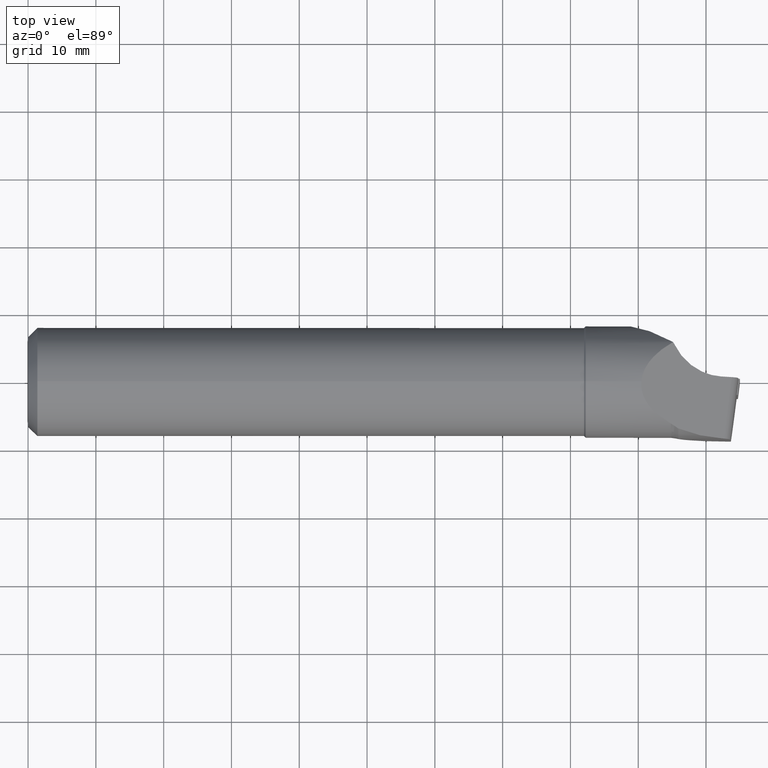
[diagram: clean part render]
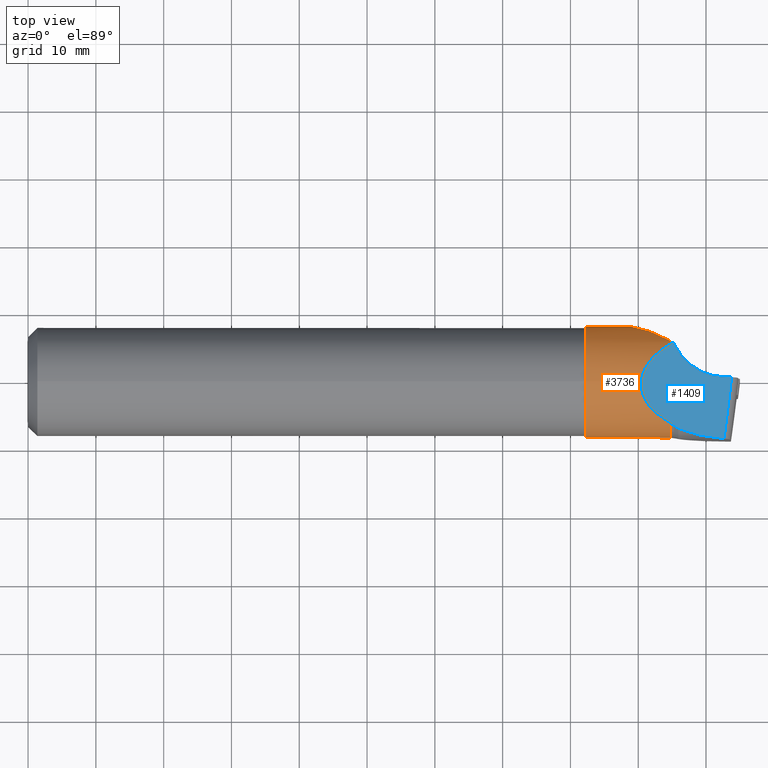
[diagram: same view with the hole feature highlighted: cylindrical wall and planar end face, labeled with their STEP entity ids]
A machine part, top view. The highlighted faces form one hole feature of diameter 16.5 mm: the cylindrical wall (entity #3736, orange) and its adjacent planar end face (entity #1409, blue) — they share a circular edge in the B-rep.
Wall:
#39 = LINE ( 'NONE', #2647, #718 ) ;
#103 = CARTESIAN_POINT ( 'NONE',  ( 82.25000000000004300, 1.132828639921479300E-014, 8.250000000000016000 ) ) ;
#108 = EDGE_CURVE ( 'NONE', #2650, #2650, #2310, .T. ) ;
#117 = CARTESIAN_POINT ( 'NONE',  ( 94.81279082509134100, 5.600531583967415000, 6.057767408623729600 ) ) ;
#158 = CARTESIAN_POINT ( 'NONE',  ( 94.45114047065145300, -6.498213384498396500, -5.083303957564925000 ) ) ;
#160 = CARTESIAN_POINT ( 'NONE',  ( 85.05463793922514500, 7.792571398033995700, -2.720492985204813400 ) ) ;
#170 = CARTESIAN_POINT ( 'NONE',  ( 93.83172036081710100, -5.764164695537372700, -5.911072384706151300 ) ) ;
#171 = CARTESIAN_POINT ( 'NONE',  ( 85.47870053942779100, 1.372822541037112000, -8.136110431622466200 ) ) ;
#188 = CARTESIAN_POINT ( 'NONE',  ( 83.82874726931567000, 7.150984415827331900, -4.123198518134644000 ) ) ;
#196 = CARTESIAN_POINT ( 'NONE',  ( 82.47773327423274700, 5.112641907717137900, -6.476896705371637500 ) ) ;
#238 = CARTESIAN_POINT ( 'NONE',  ( 88.61028506717654800, 1.970548363892312500, 9.413762167412437900 ) ) ;
#270 = CARTESIAN_POINT ( 'NONE',  ( 89.22407377641575000, 0.2063974402334956800, -8.248546554177606200 ) ) ;
#352 = DIRECTION ( 'NONE',  ( 0.0000000000000000000, 1.951563910473924900E-017, 1.000000000000000000 ) ) ;
#431 = CARTESIAN_POINT ( 'NONE',  ( 92.97495974480986500, -0.7354221151415072400, -8.244986181369634800 ) ) ;
#461 = CARTESIAN_POINT ( 'NONE',  ( 84.61989537200767600, 1.844104437066210700, -8.042962511283652900 ) ) ;
#471 = CARTESIAN_POINT ( 'NONE',  ( 82.68438157144717600, 5.837127699295306700, -5.832196515561955500 ) ) ;
#510 = CARTESIAN_POINT ( 'NONE',  ( 91.17347121959994600, -0.02569698064891597100, -8.250226498002538400 ) ) ;
#556 = CARTESIAN_POINT ( 'NONE',  ( 94.81279082509136900, 1.441988889405720900E-014, 7.806255641895631900E-015 ) ) ;
#581 = EDGE_LOOP ( 'NONE', ( #3699, #1545, #3290, #1607, #3249, #2121 ) ) ;
#649 = AXIS2_PLACEMENT_3D ( 'NONE', #2401, #2117, #2705 ) ;
#718 = VECTOR ( 'NONE', #1781, 1000.000000000000000 ) ;
#740 = CARTESIAN_POINT ( 'NONE',  ( 92.99421829504814200, -0.05857669549425643900, -8.249792044090764200 ) ) ;
#752 = CARTESIAN_POINT ( 'NONE',  ( 83.46457210586652300, 6.862117985993690700, -4.587884139955465700 ) ) ;
#760 = CARTESIAN_POINT ( 'NONE',  ( 94.19687023101184300, -6.282604741102617600, -5.349183036921767900 ) ) ;
#774 = CARTESIAN_POINT ( 'NONE',  ( 82.46625092989408800, 4.980605815046057900, -6.579033865242605500 ) ) ;
#797 = CARTESIAN_POINT ( 'NONE',  ( 87.06646073698078700, 8.237948317455497700, -0.6351272398047614900 ) ) ;
#842 = DIRECTION ( 'NONE',  ( -1.000000000000000000, -8.847089727481710000E-017, -5.551115123125779000E-017 ) ) ;
#880 = CARTESIAN_POINT ( 'NONE',  ( 88.61028506717654800, -2.965988874112237100, 9.149037599533990300 ) ) ;
#900 = CIRCLE ( 'NONE', #921, 8.250000000000003600 ) ;
#921 = AXIS2_PLACEMENT_3D ( 'NONE', #959, #3319, #352 ) ;
#959 = CARTESIAN_POINT ( 'NONE',  ( 94.81279082509136900, 1.441988889405720900E-014, 7.806255641895631900E-015 ) ) ;
#999 = CARTESIAN_POINT ( 'NONE',  ( 94.64723944378155800, -6.596996995718136200, -4.954262788221908100 ) ) ;
#1055 = CARTESIAN_POINT ( 'NONE',  ( 94.51019602967657800, -6.535384581973137800, -5.035259427475621900 ) ) ;
#1063 = CARTESIAN_POINT ( 'NONE',  ( 91.32394160923593100, 7.579248507518507000, 3.286439135073551100 ) ) ;
#1070 = CARTESIAN_POINT ( 'NONE',  ( 94.81279082509134100, 5.966060737431767800, 5.698124189351756500 ) ) ;
#1073 = CARTESIAN_POINT ( 'NONE',  ( 83.82249756408157300, 2.417296308680590300, -7.890574200201366600 ) ) ;
#1133 = CARTESIAN_POINT ( 'NONE',  ( 94.81279082509135500, -6.216252376388659700, 5.424085765642189500 ) ) ;
#1169 = CARTESIAN_POINT ( 'NONE',  ( 94.81279082509135500, -6.216252376388659700, 5.424085765642189500 ) ) ;
#1175 = VERTEX_POINT ( 'NONE', #2509 ) ;
#1296 = CARTESIAN_POINT ( 'NONE',  ( 93.19512659255785500, -3.626187602783514500, -7.417727172103911700 ) ) ;
#1322 = CARTESIAN_POINT ( 'NONE',  ( 93.95541394087437900, -5.985500335067067500, -5.685579277486086300 ) ) ;
#1323 = CARTESIAN_POINT ( 'NONE',  ( 89.87673581892181600, 7.998254840959744700, 2.034740607515970200 ) ) ;
#1346 = CARTESIAN_POINT ( 'NONE',  ( 90.11859365492830400, 7.940158404167386100, 2.250580439175839500 ) ) ;
#1353 = CARTESIAN_POINT ( 'NONE',  ( 82.46770247416755200, 4.711604762658517100, -6.774282356484208700 ) ) ;
#1369 = CARTESIAN_POINT ( 'NONE',  ( 83.29483741608788700, 6.703565843215958600, -4.817382303978957800 ) ) ;
#1399 = DIRECTION ( 'NONE',  ( 0.0000000000000000000, 1.951563910473924900E-017, 1.000000000000000000 ) ) ;
#1449 = CYLINDRICAL_SURFACE ( 'NONE', #649, 8.250000000000003600 ) ;
#1493 = EDGE_CURVE ( 'NONE', #3204, #1175, #1740, .T. ) ;
#1511 = DIRECTION ( 'NONE',  ( -1.000000000000000000, -8.847089727481710000E-017, -5.551115123125779000E-017 ) ) ;
#1545 = ORIENTED_EDGE ( 'NONE', *, *, #1493, .T. ) ;
#1597 = CARTESIAN_POINT ( 'NONE',  ( 93.30497696217656800, -4.208407270898464800, -7.103606209003881800 ) ) ;
#1607 = ORIENTED_EDGE ( 'NONE', *, *, #2817, .T. ) ;
#1624 = CARTESIAN_POINT ( 'NONE',  ( 93.04738777316529800, -2.378670822269626700, -7.906824188195347600 ) ) ;
#1625 = CARTESIAN_POINT ( 'NONE',  ( 85.18650896685466000, 1.519601010731012300, -8.110535118036720400 ) ) ;
#1641 = CARTESIAN_POINT ( 'NONE',  ( 86.61145308633419400, 8.190945871813829300, -1.091862980500433600 ) ) ;
#1652 = CARTESIAN_POINT ( 'NONE',  ( 92.98542042703505200, -1.399997660744666700, -8.158203297595704800 ) ) ;
#1653 = CARTESIAN_POINT ( 'NONE',  ( 84.02298037049227700, 7.280794784554201400, -3.888485692124142600 ) ) ;
#1667 = CARTESIAN_POINT ( 'NONE',  ( 84.34418248513902900, 2.022617653384543200, -8.000843735573242900 ) ) ;
#1678 = CARTESIAN_POINT ( 'NONE',  ( 83.14660840993093400, 3.096183806076538300, -7.651002940816924000 ) ) ;
#1708 = AXIS2_PLACEMENT_3D ( 'NONE', #2392, #1511, #3566 ) ;
#1740 = B_SPLINE_CURVE_WITH_KNOTS ( 'NONE', 3,
 ( #740, #431, #1652, #1624, #3097, #2788, #1296, #1597, #3089, #3076, #2806, #170, #1322, #760, #2819, #158, #1055, #999, #3688, #1890 ),
 .UNSPECIFIED., .F., .F.,
 ( 4, 2, 2, 2, 2, 2, 2, 2, 2, 4 ),
 ( 0.0001985328325759686300, 0.002209276724673574200, 0.003214648670722376100, 0.004220020616771178100, 0.005225392562819979600, 0.006230764508868781900, 0.007236136454917583400, 0.007738822427941985000, 0.007990165414454186700, 0.008241508400966386600 ),
 .UNSPECIFIED. ) ;
#1781 = DIRECTION ( 'NONE',  ( 1.000000000000000000, 8.847089727481710000E-017, 5.551115123125779000E-017 ) ) ;
#1890 = CARTESIAN_POINT ( 'NONE',  ( 94.81279082509136900, -6.625430929207062100, -4.915909376941980800 ) ) ;
#1913 = CARTESIAN_POINT ( 'NONE',  ( 84.42314837974215900, 7.511504183772420800, -3.421636826113396300 ) ) ;
#1931 = CARTESIAN_POINT ( 'NONE',  ( 82.95436295751781600, 3.351818408483764300, -7.544220781660688300 ) ) ;
#1944 = CARTESIAN_POINT ( 'NONE',  ( 85.93795317957868500, 8.058056465293855600, -1.784808326663873500 ) ) ;
#1957 = CARTESIAN_POINT ( 'NONE',  ( 82.85211707265064300, 6.159891513962239000, -5.496775457690646700 ) ) ;
#1968 = CARTESIAN_POINT ( 'NONE',  ( 82.52119559377807400, 5.365553485440627500, -6.268981895290131900 ) ) ;
#1984 = CARTESIAN_POINT ( 'NONE',  ( 91.83332924902505600, -0.05857669549424344300, -8.249792044090847700 ) ) ;
#1992 = CARTESIAN_POINT ( 'NONE',  ( 87.94775995434319800, 0.4790732452577076700, -8.237208810358529500 ) ) ;
#2002 = CARTESIAN_POINT ( 'NONE',  ( 87.31681149530511700, 0.6518591974243338500, -8.227190871824873900 ) ) ;
#2113 = VERTEX_POINT ( 'NONE', #1169 ) ;
#2117 = DIRECTION ( 'NONE',  ( -1.000000000000000000, -8.847089727481710000E-017, -5.551115123125779000E-017 ) ) ;
#2121 = ORIENTED_EDGE ( 'NONE', *, *, #3196, .T. ) ;
#2253 = CARTESIAN_POINT ( 'NONE',  ( 90.84179906594077600, 7.742591018981272600, 2.882654245426250500 ) ) ;
#2264 = CARTESIAN_POINT ( 'NONE',  ( 85.27301386008299700, 7.870512846710754600, -2.485303120382004800 ) ) ;
#2310 = CIRCLE ( 'NONE', #1708, 8.250000000000003600 ) ;
#2330 = CARTESIAN_POINT ( 'NONE',  ( 89.86952538265576600, 0.1069302649348735100, -8.249573535741010500 ) ) ;
#2374 = VERTEX_POINT ( 'NONE', #117 ) ;
#2392 = CARTESIAN_POINT ( 'NONE',  ( 82.25000000000004300, 1.116728237660069600E-014, 1.214306433183765000E-014 ) ) ;
#2401 = CARTESIAN_POINT ( 'NONE',  ( -3.175455607189903200, 4.336808689942017700E-016, 8.673617379884035500E-016 ) ) ;
#2441 = CARTESIAN_POINT ( 'NONE',  ( 92.49252308485755200, -0.05857669549434209300, -8.249792044090865400 ) ) ;
#2507 = CARTESIAN_POINT ( 'NONE',  ( 93.77049664483099900, 6.517499637741202000, 5.120755591739097700 ) ) ;
#2509 = CARTESIAN_POINT ( 'NONE',  ( 94.81279082509136900, -6.625430929207062100, -4.915909376941980800 ) ) ;
#2533 = CARTESIAN_POINT ( 'NONE',  ( 94.81279082509134100, 5.966060737431767800, 5.698124189351756500 ) ) ;
#2545 = CARTESIAN_POINT ( 'NONE',  ( 92.78241157631887900, 7.008089180020727200, 4.436433990710853900 ) ) ;
#2555 = CARTESIAN_POINT ( 'NONE',  ( 82.55315849060130500, 5.487486492886559700, -6.162447614751210200 ) ) ;
#2561 = ORIENTED_EDGE ( 'NONE', *, *, #108, .F. ) ;
#2601 = CARTESIAN_POINT ( 'NONE',  ( 94.81279082509134100, 5.600531583967415000, 6.057767408623729600 ) ) ;
#2647 = CARTESIAN_POINT ( 'NONE',  ( -3.175455607189910300, -0.05857669549445810400, -8.249792044090869000 ) ) ;
#2650 = VERTEX_POINT ( 'NONE', #103 ) ;
#2705 = DIRECTION ( 'NONE',  ( 5.256737805990322300E-017, 1.951563910473907400E-017, 1.000000000000000000 ) ) ;
#2758 = VERTEX_POINT ( 'NONE', #1070 ) ;
#2788 = CARTESIAN_POINT ( 'NONE',  ( 93.15001840227344600, -3.325031411399552700, -7.557676481095926500 ) ) ;
#2806 = CARTESIAN_POINT ( 'NONE',  ( 93.61527927209081700, -5.285463026647974500, -6.342732216360100300 ) ) ;
#2807 = CARTESIAN_POINT ( 'NONE',  ( 82.98872357636429300, 6.352373822401709400, -5.271841622951768600 ) ) ;
#2817 = EDGE_CURVE ( 'NONE', #2113, #2374, #3102, .T. ) ;
#2819 = CARTESIAN_POINT ( 'NONE',  ( 94.28690594372540100, -6.376406622247051500, -5.236503017247213300 ) ) ;
#2845 = CARTESIAN_POINT ( 'NONE',  ( 89.39747355548992400, 8.096512833099105000, 1.599603008334203400 ) ) ;
#2861 = CARTESIAN_POINT ( 'NONE',  ( 82.48045966331186200, 4.575836460242822300, -6.866626271662941100 ) ) ;
#2906 = CARTESIAN_POINT ( 'NONE',  ( 86.38461736024623900, 0.9823408952497247900, -8.192055839604377000 ) ) ;
#2925 = B_SPLINE_CURVE_WITH_KNOTS ( 'NONE', 3,
 ( #2533, #2507, #2545, #1063, #2253, #1346, #1323, #2845, #3690, #3678, #3668, #797, #1641, #1944, #3379, #2264, #160, #3423, #1913, #1653, #188, #752, #1369, #2807, #1957, #471, #3099, #2555, #1968, #196, #774, #1353, #2861, #3090, #3417, #1931, #1678, #3719, #1073, #1667, #461, #1625, #171, #3702, #2906, #2002, #1992, #270, #2330, #510, #1984, #3438 ),
 .UNSPECIFIED., .F., .F.,
 ( 4, 2, 2, 2, 2, 2, 2, 2, 2, 2, 2, 2, 2, 2, 2, 2, 2, 2, 2, 2, 2, 2, 2, 2, 2, 4 ),
 ( 0.0000000000000000000, 0.003883854966194711400, 0.005825782449292066900, 0.006796746190840760100, 0.007767709932389454100, 0.009709637415486841200, 0.01165156489858422600, 0.01262252864013293500, 0.01359349238168164200, 0.01456445612323034900, 0.01553541986477905600, 0.01650638360632776500, 0.01747734734787647100, 0.01796282921865082600, 0.01844831108942517800, 0.01893379296019953200, 0.01941927483097388700, 0.02039023857252258300, 0.02136120231407128200, 0.02233216605561998100, 0.02330312979716867700, 0.02427409353871737600, 0.02524505728026607600, 0.02718698476336347700, 0.02912891224646087900, 0.03107083972955827800 ),
 .UNSPECIFIED. ) ;
#2926 = VERTEX_POINT ( 'NONE', #2441 ) ;
#2941 = FACE_OUTER_BOUND ( 'NONE', #3268, .T. ) ;
#3076 = CARTESIAN_POINT ( 'NONE',  ( 93.52558498253331700, -5.030345835568415900, -6.547341421888724300 ) ) ;
#3089 = CARTESIAN_POINT ( 'NONE',  ( 93.36966495625854600, -4.489652113339836600, -6.929291653652883900 ) ) ;
#3090 = CARTESIAN_POINT ( 'NONE',  ( 82.55623442234339400, 4.165471080135098700, -7.128582842534363800 ) ) ;
#3097 = CARTESIAN_POINT ( 'NONE',  ( 93.07618422486005700, -2.702497182515506400, -7.801975176722874200 ) ) ;
#3099 = CARTESIAN_POINT ( 'NONE',  ( 82.63458273673381900, 5.723056314339433300, -5.944316195918992700 ) ) ;
#3102 =( BOUNDED_CURVE ( )  B_SPLINE_CURVE ( 3, ( #1133, #880, #238, #2601 ),
 .UNSPECIFIED., .F., .T. ) 
 B_SPLINE_CURVE_WITH_KNOTS ( ( 4, 4 ),
 ( 5.483412581221290200, 7.082958033137880500 ),
 .UNSPECIFIED. ) 
 CURVE ( )  GEOMETRIC_REPRESENTATION_ITEM ( )  RATIONAL_B_SPLINE_CURVE ( ( 1.000000000000000000, 0.7979131518468103300, 0.7979131518468103300, 1.000000000000000000 ) ) 
 REPRESENTATION_ITEM ( '' )  );
#3196 = EDGE_CURVE ( 'NONE', #2758, #2926, #2925, .T. ) ;
#3204 = VERTEX_POINT ( 'NONE', #3393 ) ;
#3249 = ORIENTED_EDGE ( 'NONE', *, *, #3750, .T. ) ;
#3268 = EDGE_LOOP ( 'NONE', ( #2561 ) ) ;
#3290 = ORIENTED_EDGE ( 'NONE', *, *, #3456, .T. ) ;
#3313 = AXIS2_PLACEMENT_3D ( 'NONE', #556, #842, #1399 ) ;
#3319 = DIRECTION ( 'NONE',  ( -1.000000000000000000, -8.847089727481710000E-017, -5.551115123125779000E-017 ) ) ;
#3379 = CARTESIAN_POINT ( 'NONE',  ( 85.71499210760663300, 8.003304092582061100, -2.017133528569419200 ) ) ;
#3393 = CARTESIAN_POINT ( 'NONE',  ( 92.99421829504814200, -0.05857669549425643900, -8.249792044090764200 ) ) ;
#3417 = CARTESIAN_POINT ( 'NONE',  ( 82.66022081578006500, 3.883375681108531400, -7.284871115213123400 ) ) ;
#3423 = CARTESIAN_POINT ( 'NONE',  ( 84.63009024473656400, 7.613158685043139900, -3.188270050098985100 ) ) ;
#3429 = CIRCLE ( 'NONE', #3313, 8.250000000000003600 ) ;
#3438 = CARTESIAN_POINT ( 'NONE',  ( 92.49252308485755200, -0.05857669549434209300, -8.249792044090865400 ) ) ;
#3456 = EDGE_CURVE ( 'NONE', #1175, #2113, #3429, .T. ) ;
#3468 = FACE_OUTER_BOUND ( 'NONE', #581, .T. ) ;
#3566 = DIRECTION ( 'NONE',  ( 0.0000000000000000000, 1.951563910473906400E-017, 1.000000000000000000 ) ) ;
#3668 = CARTESIAN_POINT ( 'NONE',  ( 87.98673571079118000, 8.257999733992877000, 0.2694800274299867800 ) ) ;
#3669 = EDGE_CURVE ( 'NONE', #2926, #3204, #39, .T. ) ;
#3678 = CARTESIAN_POINT ( 'NONE',  ( 88.45205157311775700, 8.230867787218409500, 0.7173059457625200500 ) ) ;
#3688 = CARTESIAN_POINT ( 'NONE',  ( 94.72652388811448500, -6.621556434173159600, -4.921131238710458400 ) ) ;
#3690 = CARTESIAN_POINT ( 'NONE',  ( 89.15986499520950300, 8.136796390433731900, 1.380162160127851100 ) ) ;
#3699 = ORIENTED_EDGE ( 'NONE', *, *, #3669, .T. ) ;
#3702 = CARTESIAN_POINT ( 'NONE',  ( 86.07719487062418300, 1.104351497359531600, -8.176878527593233400 ) ) ;
#3719 = CARTESIAN_POINT ( 'NONE',  ( 83.58041853018136200, 2.630272116157077900, -7.823417971472990100 ) ) ;
#3736 = ADVANCED_FACE ( 'NONE', ( #2941, #3468 ), #1449, .T. ) ;
#3750 = EDGE_CURVE ( 'NONE', #2374, #2758, #900, .T. ) ;
End face:
#9 = VERTEX_POINT ( 'NONE', #2684 ) ;
#51 = CARTESIAN_POINT ( 'NONE',  ( 94.99239653491642300, -6.310370125928714400, 5.316222485170997400 ) ) ;
#65 = B_SPLINE_CURVE_WITH_KNOTS ( 'NONE', 3,
 ( #1197, #3274, #51, #1177 ),
 .UNSPECIFIED., .F., .F.,
 ( 4, 4 ),
 ( 2.725626260580401800E-007, 0.0006880097949547835900 ),
 .UNSPECIFIED. ) ;
#78 = VERTEX_POINT ( 'NONE', #3579 ) ;
#117 = CARTESIAN_POINT ( 'NONE',  ( 94.81279082509134100, 5.600531583967415000, 6.057767408623729600 ) ) ;
#136 = ORIENTED_EDGE ( 'NONE', *, *, #1336, .F. ) ;
#155 = CARTESIAN_POINT ( 'NONE',  ( 103.8172330551767300, 1.001336003538111800, 0.6564961548084199400 ) ) ;
#229 = CARTESIAN_POINT ( 'NONE',  ( 95.13635201433335500, 5.808092099476027700, 5.883673778202167500 ) ) ;
#238 = CARTESIAN_POINT ( 'NONE',  ( 88.61028506717654800, 1.970548363892312500, 9.413762167412437900 ) ) ;
#264 = ORIENTED_EDGE ( 'NONE', *, *, #2067, .F. ) ;
#285 = CARTESIAN_POINT ( 'NONE',  ( 95.33373535809217000, -6.535860919856290300, 5.108729343144726300 ) ) ;
#309 = DIRECTION ( 'NONE',  ( -0.4962730758206587200, 0.04648911612598088200, -0.8669208708396216600 ) ) ;
#335 = CARTESIAN_POINT ( 'NONE',  ( 100.2027311393238700, -8.223030124776673900, 2.230973596896320000 ) ) ;
#373 = CARTESIAN_POINT ( 'NONE',  ( 95.92594908861165900, -6.928959454922897400, 4.748633579466254400 ) ) ;
#387 = CARTESIAN_POINT ( 'NONE',  ( 96.55647774403179500, 2.773655923282334800, 4.907992550361607100 ) ) ;
#420 = CARTESIAN_POINT ( 'NONE',  ( 99.14732768001037800, 0.9542861417993008200, 3.327283161697195200 ) ) ;
#445 = AXIS2_PLACEMENT_3D ( 'NONE', #2082, #309, #2685 ) ;
#640 = CARTESIAN_POINT ( 'NONE',  ( 102.6704332179180000, -8.360764151587037700, 0.8109394561476431800 ) ) ;
#681 = CARTESIAN_POINT ( 'NONE',  ( 95.92594908861165900, -6.928959454922897400, 4.748633579466254400 ) ) ;
#695 = CARTESIAN_POINT ( 'NONE',  ( 95.13635201433335500, 5.808092099476027700, 5.883673778202167500 ) ) ;
#775 = LINE ( 'NONE', #2263, #2475 ) ;
#785 = CARTESIAN_POINT ( 'NONE',  ( 95.33373535809217000, -6.535860919856290300, 5.108729343144726300 ) ) ;
#880 = CARTESIAN_POINT ( 'NONE',  ( 88.61028506717654800, -2.965988874112237100, 9.149037599533990300 ) ) ;
#908 = VERTEX_POINT ( 'NONE', #785 ) ;
#935 = VERTEX_POINT ( 'NONE', #229 ) ;
#972 = CARTESIAN_POINT ( 'NONE',  ( 97.90618995264296100, -7.735491212366105700, 3.571784333696531800 ) ) ;
#978 =( BOUNDED_CURVE ( )  B_SPLINE_CURVE ( 3, ( #373, #972, #335, #640 ),
 .UNSPECIFIED., .F., .T. ) 
 B_SPLINE_CURVE_WITH_KNOTS ( ( 4, 4 ),
 ( 0.9164087961094222700, 1.420531079021499100 ),
 .UNSPECIFIED. ) 
 CURVE ( )  GEOMETRIC_REPRESENTATION_ITEM ( )  RATIONAL_B_SPLINE_CURVE ( ( 1.000000000000000000, 0.9789336195988784800, 0.9789336195988784800, 1.000000000000000000 ) ) 
 REPRESENTATION_ITEM ( '' )  );
#1010 = CARTESIAN_POINT ( 'NONE',  ( 94.92297002257650700, 5.665013368214269800, 5.998152661984297800 ) ) ;
#1032 = CARTESIAN_POINT ( 'NONE',  ( 95.13635201433335500, 5.808092099476027700, 5.883673778202167500 ) ) ;
#1130 = B_SPLINE_CURVE_WITH_KNOTS ( 'NONE', 3,
 ( #3085, #1010, #3353, #1032 ),
 .UNSPECIFIED., .F., .F.,
 ( 4, 4 ),
 ( 2.552731845325178500E-007, 0.0004221479647500433600 ),
 .UNSPECIFIED. ) ;
#1133 = CARTESIAN_POINT ( 'NONE',  ( 94.81279082509135500, -6.216252376388659700, 5.424085765642189500 ) ) ;
#1169 = CARTESIAN_POINT ( 'NONE',  ( 94.81279082509135500, -6.216252376388659700, 5.424085765642189500 ) ) ;
#1177 = CARTESIAN_POINT ( 'NONE',  ( 94.81279082509135500, -6.216252376388659700, 5.424085765642189500 ) ) ;
#1197 = CARTESIAN_POINT ( 'NONE',  ( 95.33373535809217000, -6.535860919856290300, 5.108729343144726300 ) ) ;
#1254 =( BOUNDED_CURVE ( )  B_SPLINE_CURVE ( 3, ( #695, #387, #420, #1598 ),
 .UNSPECIFIED., .F., .F. ) 
 B_SPLINE_CURVE_WITH_KNOTS ( ( 4, 4 ),
 ( 0.1232158796839822500, 1.125063297520777100 ),
 .UNSPECIFIED. ) 
 CURVE ( )  GEOMETRIC_REPRESENTATION_ITEM ( )  RATIONAL_B_SPLINE_CURVE ( ( 1.000000000000000000, 0.9180928919427942000, 0.9180928919427942000, 1.000000000000000000 ) ) 
 REPRESENTATION_ITEM ( '' )  );
#1267 = EDGE_CURVE ( 'NONE', #3156, #9, #2853, .T. ) ;
#1320 = ORIENTED_EDGE ( 'NONE', *, *, #1892, .F. ) ;
#1336 = EDGE_CURVE ( 'NONE', #2300, #908, #2070, .T. ) ;
#1409 = ADVANCED_FACE ( 'NONE', ( #2389 ), #3568, .F. ) ;
#1427 = EDGE_LOOP ( 'NONE', ( #2433, #1492, #3693, #2724, #1320, #1827, #264, #136 ) ) ;
#1492 = ORIENTED_EDGE ( 'NONE', *, *, #1267, .T. ) ;
#1539 = EDGE_CURVE ( 'NONE', #78, #9, #775, .T. ) ;
#1598 = CARTESIAN_POINT ( 'NONE',  ( 102.2722747452705600, 0.7970407068907632300, 1.529959616322085400 ) ) ;
#1606 = VECTOR ( 'NONE', #2049, 1000.000000000000000 ) ;
#1827 = ORIENTED_EDGE ( 'NONE', *, *, #2817, .F. ) ;
#1892 = EDGE_CURVE ( 'NONE', #2374, #935, #1130, .T. ) ;
#2049 = DIRECTION ( 'NONE',  ( 0.1215687888871667100, 0.9924479759427398100, -0.01637206815482862600 ) ) ;
#2067 = EDGE_CURVE ( 'NONE', #908, #2113, #65, .T. ) ;
#2070 =( BOUNDED_CURVE ( )  B_SPLINE_CURVE ( 3, ( #2271, #3432, #2938, #285 ),
 .UNSPECIFIED., .F., .F. ) 
 B_SPLINE_CURVE_WITH_KNOTS ( ( 4, 4 ),
 ( 2.453029940342618300, 2.502877195135470200 ),
 .UNSPECIFIED. ) 
 CURVE ( )  GEOMETRIC_REPRESENTATION_ITEM ( )  RATIONAL_B_SPLINE_CURVE ( ( 1.000000000000000000, 0.9997929483176222200, 0.9997929483176222200, 1.000000000000000000 ) ) 
 REPRESENTATION_ITEM ( '' )  );
#2082 = CARTESIAN_POINT ( 'NONE',  ( 104.8000000000000800, 0.8715574274765995900, 0.08694698091745670100 ) ) ;
#2113 = VERTEX_POINT ( 'NONE', #1169 ) ;
#2263 = CARTESIAN_POINT ( 'NONE',  ( 113.3638823464906000, 0.2389177612326180100, -4.849414843921693800 ) ) ;
#2271 = CARTESIAN_POINT ( 'NONE',  ( 95.92594908861165900, -6.928959454922897400, 4.748633579466254400 ) ) ;
#2300 = VERTEX_POINT ( 'NONE', #681 ) ;
#2374 = VERTEX_POINT ( 'NONE', #117 ) ;
#2389 = FACE_OUTER_BOUND ( 'NONE', #1427, .T. ) ;
#2433 = ORIENTED_EDGE ( 'NONE', *, *, #3783, .T. ) ;
#2475 = VECTOR ( 'NONE', #2584, 1000.000000000000100 ) ;
#2584 = DIRECTION ( 'NONE',  ( 0.8660254037844399300, -0.04357787137382872900, -0.4980973490458703900 ) ) ;
#2601 = CARTESIAN_POINT ( 'NONE',  ( 94.81279082509134100, 5.600531583967415000, 6.057767408623729600 ) ) ;
#2684 = CARTESIAN_POINT ( 'NONE',  ( 103.7828969361782200, 0.7210271174023309400, 0.6611203127486414700 ) ) ;
#2685 = DIRECTION ( 'NONE',  ( -0.8678592032125354000, -1.752070710736574200E-016, 0.4968102287587313800 ) ) ;
#2724 = ORIENTED_EDGE ( 'NONE', *, *, #3007, .F. ) ;
#2817 = EDGE_CURVE ( 'NONE', #2113, #2374, #3102, .T. ) ;
#2820 = CARTESIAN_POINT ( 'NONE',  ( 102.6704332179180000, -8.360764151587037700, 0.8109394561476431800 ) ) ;
#2853 = LINE ( 'NONE', #155, #1606 ) ;
#2938 = CARTESIAN_POINT ( 'NONE',  ( 95.52482685170655000, -6.669744568258565200, 4.992158501241646300 ) ) ;
#3007 = EDGE_CURVE ( 'NONE', #935, #78, #1254, .T. ) ;
#3085 = CARTESIAN_POINT ( 'NONE',  ( 94.81279082509134100, 5.600531583967415000, 6.057767408623729600 ) ) ;
#3102 =( BOUNDED_CURVE ( )  B_SPLINE_CURVE ( 3, ( #1133, #880, #238, #2601 ),
 .UNSPECIFIED., .F., .T. ) 
 B_SPLINE_CURVE_WITH_KNOTS ( ( 4, 4 ),
 ( 5.483412581221290200, 7.082958033137880500 ),
 .UNSPECIFIED. ) 
 CURVE ( )  GEOMETRIC_REPRESENTATION_ITEM ( )  RATIONAL_B_SPLINE_CURVE ( ( 1.000000000000000000, 0.7979131518468103300, 0.7979131518468103300, 1.000000000000000000 ) ) 
 REPRESENTATION_ITEM ( '' )  );
#3156 = VERTEX_POINT ( 'NONE', #2820 ) ;
#3274 = CARTESIAN_POINT ( 'NONE',  ( 95.16551827017650600, -6.418003672378750600, 5.211346195365168300 ) ) ;
#3353 = CARTESIAN_POINT ( 'NONE',  ( 95.03067955364488700, 5.734491959897416900, 5.940219644507349600 ) ) ;
#3432 = CARTESIAN_POINT ( 'NONE',  ( 95.72227230996068700, -6.800804549470368200, 4.872101722057373700 ) ) ;
#3568 = PLANE ( 'NONE',  #445 ) ;
#3579 = CARTESIAN_POINT ( 'NONE',  ( 102.2722747452705600, 0.7970407068907632300, 1.529959616322085400 ) ) ;
#3693 = ORIENTED_EDGE ( 'NONE', *, *, #1539, .F. ) ;
#3783 = EDGE_CURVE ( 'NONE', #2300, #3156, #978, .T. ) ;